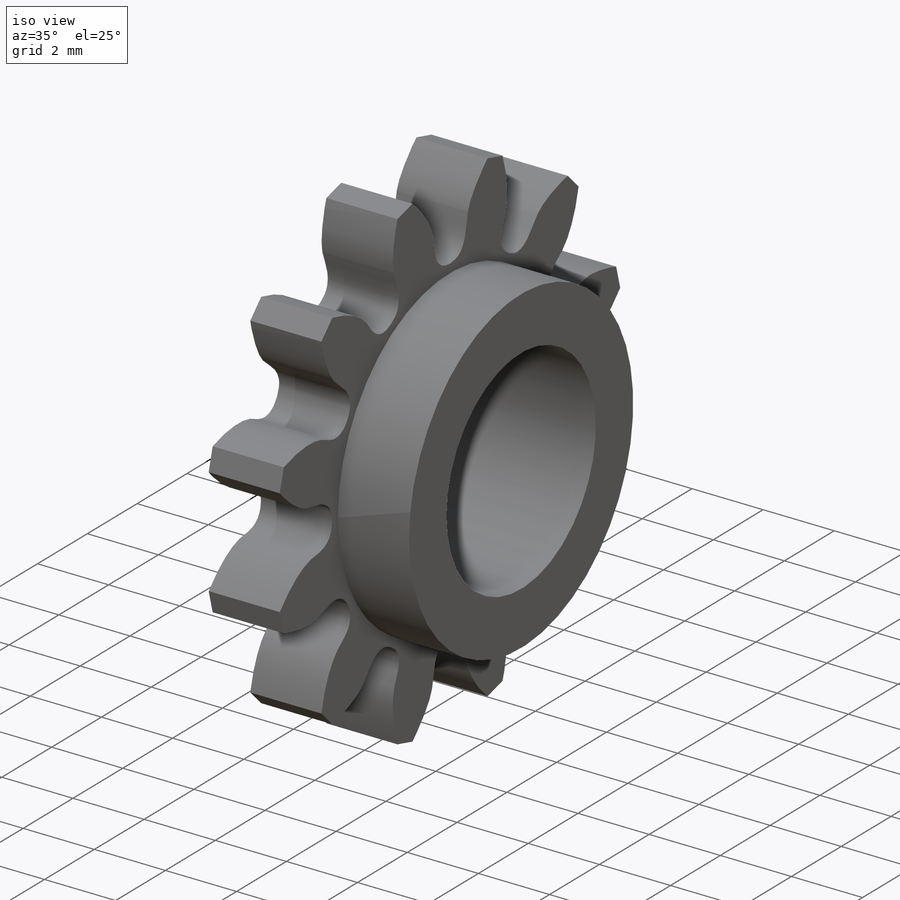
[diagram: iso view]
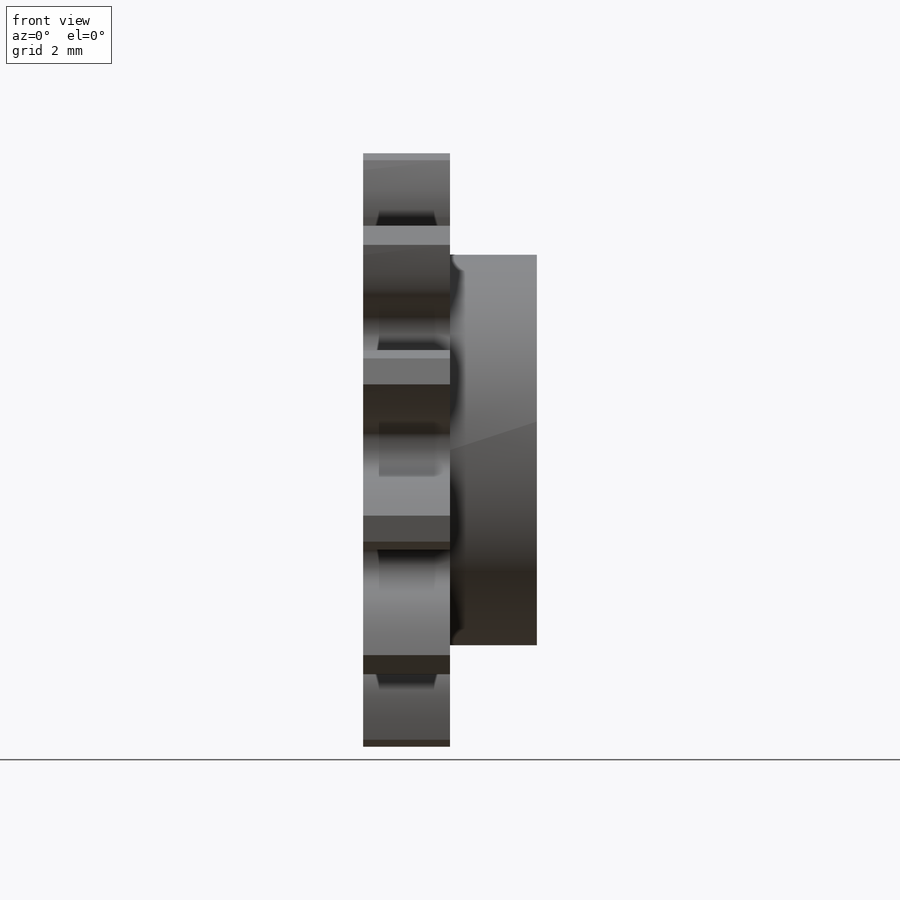
[diagram: front view]
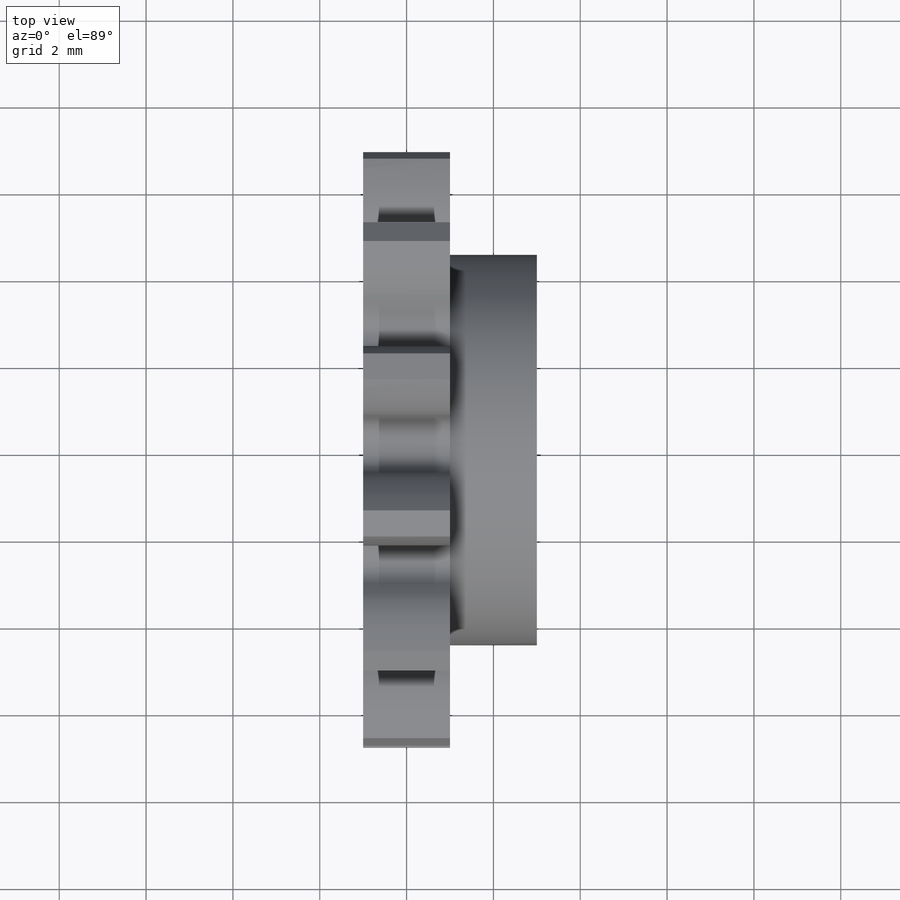
[diagram: top view]
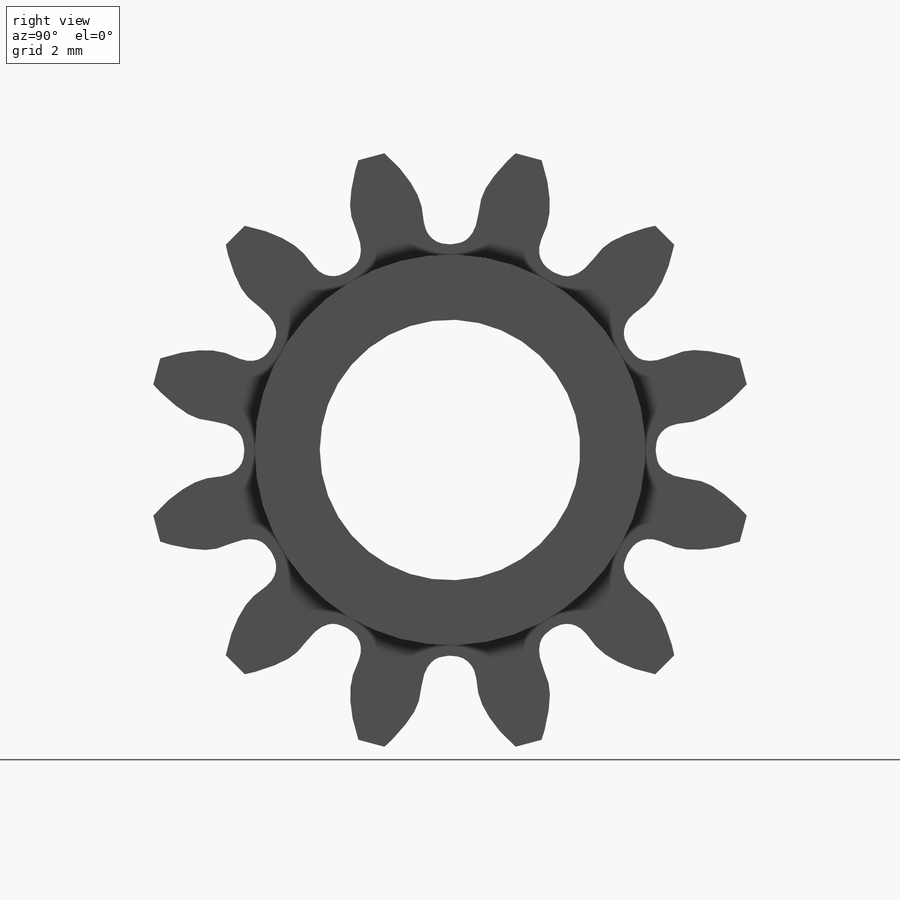
[diagram: right view]
SOLIDWORKS PART (.sldprt)
format: sldprt  version: not decoded by parser v0  size: 243,712 bytes
history: native  units: mm
features: sketch x3, plane x3, revolve x2, material x1, cut_revolve x1, move_body x1, boolean_combine x1 + 1 further entry (+17 scaffold rows collapsed; 5 parser-record rows omitted)
feature tree (35):
  scaffold x17  (default folders/planes/origin — collapsed)
  material  "POM Acetal Copolymer"
  sketch  "Sketch1"  dims[c1.D1=22.0mm c1.D2=2.0mm c1.D3=~26.541307mm c2.D1=22.0mm c2.D3=25.0mm c3.D1=1.5mm c3.D3=8.0mm c4.D1=6.0mm]
  revolve  "Revolve1"  Angle=360deg
  sketch  "Sketch3"  dims[c1.D1=22.0mm c1.D2=11.0mm c1.D3=3.0mm c2.D1=6.0mm c2.D3=4.0mm c2.D2=1.8mm c3.D1=9.0mm c3.D2=4.0mm]
  revolve  "Revolve3"  Angle=360deg
  sketch  "Sketch5"  dims[D1=3.0mm D2=6.0mm]
  cut_revolve  "Cut-Revolve2"  Angle=360deg
  plane  "Front-temp_N12_encoder"
  plane  "Top-temp_N12_encoder"
  plane  "Right-temp_N12_encoder"
  "temp_N12_encoder"
  parser-record x5  (decoder bookkeeping rows leaked as tree rows — omitted from the tree; the rows remain in map.json)
  move_body  "Body-Move/Copy2"
  boolean_combine  "Combine2"
decode coverage: 6 of 8 modeling features carry decoded parameters; 1 rows unclassified (native names shown)
note: ~ marks probable driven/reference dimensions
note: suppression state not decoded; provenance and decode notes live in map.json
